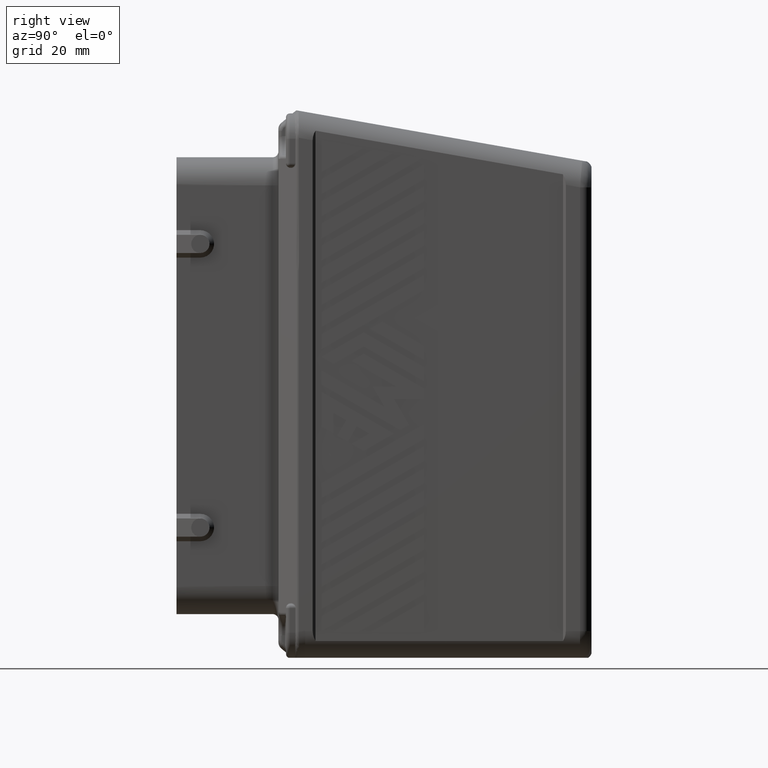
[diagram: clean part render]
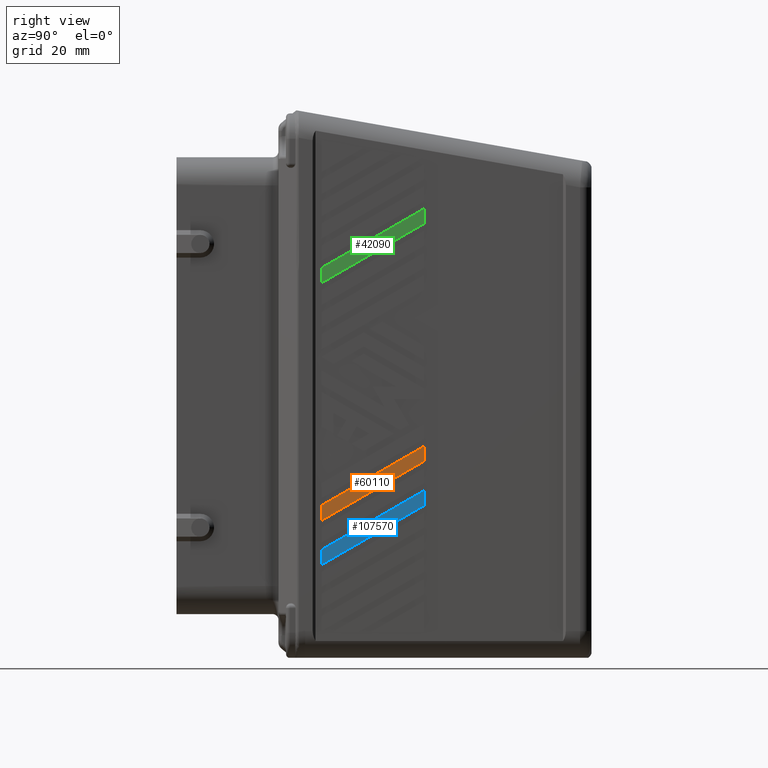
[diagram: same view with three faces highlighted in distinct colors, each labeled with its STEP entity id]
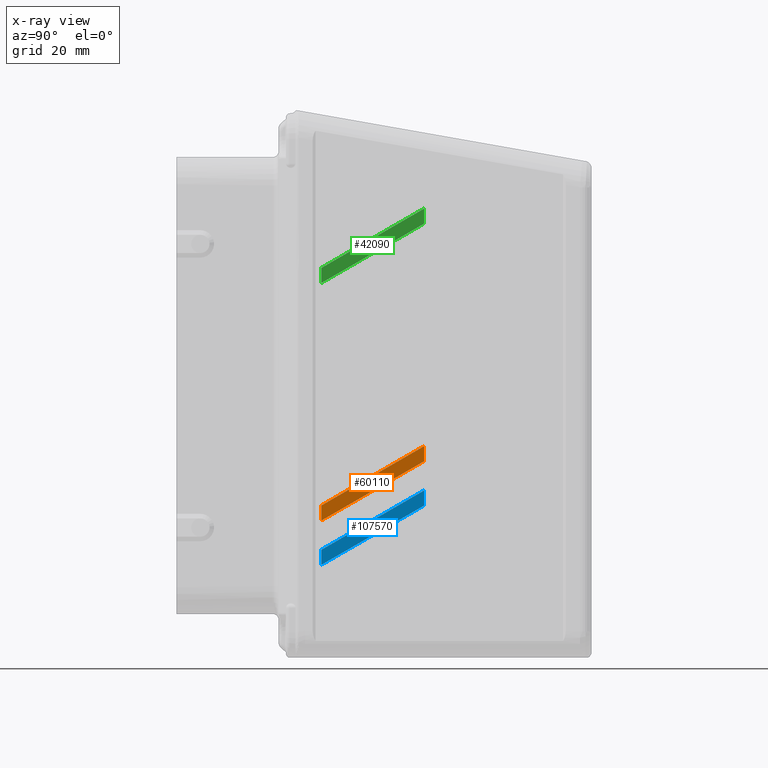
[diagram: x-ray of the same camera — body ghosted, the three highlighted faces saturated]
A machine part, right view with three faces highlighted in distinct colors.
The next image is the same camera in x-ray (body ghosted, the three faces saturated) — at least one of them is partly hidden behind the body in this view.
Their STEP definitions:

[orange] entity #60110 — the highlighted planar face has unit normal (1, -0, -0).
#41480=CARTESIAN_POINT('',(79.5281038823663,84.773232680981,
-19.8611943997613));
#41490=VERTEX_POINT('',#41480);
#41660=CARTESIAN_POINT('',(79.5281038823662,84.773232680981,
-23.8102702410184));
#41670=VERTEX_POINT('',#41660);
#41700=CARTESIAN_POINT('',(79.5281038823674,84.7732326809811,5.47));
#41710=DIRECTION('',(4.20886732018365E-14,4.49714925095434E-15,1.));
#41720=VECTOR('',#41710,1.);
#41730=LINE('',#41700,#41720);
#41740=EDGE_CURVE('',#41670,#41490,#41730,.T.);
#59810=CARTESIAN_POINT('',(79.5281038823673,68.1232326809805,
2.54895284159714));
#59820=DIRECTION('',(1.,-2.77555756156163E-17,-4.20886732018365E-14));
#59830=DIRECTION('',(-4.20886732018365E-14,1.17961196366423E-16,-1.));
#59840=AXIS2_PLACEMENT_3D('',#59810,#59820,#59830);
#59850=PLANE('',#59840);
#59860=CARTESIAN_POINT('',(79.5281038823644,57.7732326809806,
-66.2369034333514));
#59870=DIRECTION('',(4.20886732018365E-14,-2.14213244519121E-15,1.));
#59880=VECTOR('',#59870,1.);
#59890=LINE('',#59860,#59880);
#59900=CARTESIAN_POINT('',(79.5281038823655,57.7732326809806,
-39.3987275091386));
#59910=VERTEX_POINT('',#59900);
#59920=CARTESIAN_POINT('',(79.5281038823657,57.7732326809806,
-35.4496516678816));
#59930=VERTEX_POINT('',#59920);
#59940=EDGE_CURVE('',#59910,#59930,#59890,.T.);
#59950=ORIENTED_EDGE('',*,*,#59940,.F.);
#59960=CARTESIAN_POINT('',(79.5281038823643,1.4210854715202E-13,
-68.8050431082007));
#59970=DIRECTION('',(2.10683736344981E-14,0.866025403784437,
0.500000000000003));
#59980=VECTOR('',#59970,1.);
#59990=LINE('',#59960,#59980);
#60000=EDGE_CURVE('',#59930,#41490,#59990,.T.);
#60010=ORIENTED_EDGE('',*,*,#60000,.F.);
#60020=ORIENTED_EDGE('',*,*,#41740,.T.);
#60030=CARTESIAN_POINT('',(79.5281038823641,1.4210854715202E-13,
-72.7541189494578));
#60040=DIRECTION('',(2.10683736344981E-14,0.866025403784437,
0.500000000000003));
#60050=VECTOR('',#60040,1.);
#60060=LINE('',#60030,#60050);
#60070=EDGE_CURVE('',#59910,#41670,#60060,.T.);
#60080=ORIENTED_EDGE('',*,*,#60070,.T.);
#60090=EDGE_LOOP('',(#60080,#60020,#60010,#59950));
#60100=FACE_OUTER_BOUND('',#60090,.T.);
#60110=ADVANCED_FACE('',(#60100),#59850,.T.);

[blue] entity #107570 — the highlighted planar face has unit normal (1, -0, -0).
#83320=CARTESIAN_POINT('',(79.5281038823658,84.773232680981,
-31.5005758266242));
#83330=VERTEX_POINT('',#83320);
#83500=CARTESIAN_POINT('',(79.5281038823657,84.7732326809809,
-35.4496516678812));
#83510=VERTEX_POINT('',#83500);
#83540=CARTESIAN_POINT('',(79.5281038823674,84.7732326809812,5.47));
#83550=DIRECTION('',(4.20886732018365E-14,4.49714925095434E-15,1.));
#83560=VECTOR('',#83550,1.);
#83570=LINE('',#83540,#83560);
#83580=EDGE_CURVE('',#83510,#83330,#83570,.T.);
#107270=CARTESIAN_POINT('',(79.5281038823673,68.1232326809805,
2.54895284159714));
#107280=DIRECTION('',(1.,-2.77555756156163E-17,-4.20886732018365E-14));
#107290=DIRECTION('',(-4.20886732018365E-14,1.17961196366423E-16,-1.));
#107300=AXIS2_PLACEMENT_3D('',#107270,#107280,#107290);
#107310=PLANE('',#107300);
#107320=CARTESIAN_POINT('',(79.5281038823638,0.,-80.4444245350636));
#107330=DIRECTION('',(-2.10683736344981E-14,-0.866025403784437,
-0.500000000000003));
#107340=VECTOR('',#107330,1.);
#107350=LINE('',#107320,#107340);
#107360=CARTESIAN_POINT('',(79.5281038823652,57.7732326809806,
-47.0890330947444));
#107370=VERTEX_POINT('',#107360);
#107380=EDGE_CURVE('',#83330,#107370,#107350,.T.);
#107390=ORIENTED_EDGE('',*,*,#107380,.T.);
#107400=ORIENTED_EDGE('',*,*,#83580,.T.);
#107410=CARTESIAN_POINT('',(79.5281038823636,1.4210854715202E-13,
-84.3935003763206));
#107420=DIRECTION('',(2.10683736344981E-14,0.866025403784437,
0.500000000000003));
#107430=VECTOR('',#107420,1.);
#107440=LINE('',#107410,#107430);
#107450=CARTESIAN_POINT('',(79.528103882365,57.7732326809806,
-51.0381089360014));
#107460=VERTEX_POINT('',#107450);
#107470=EDGE_CURVE('',#107460,#83510,#107440,.T.);
#107480=ORIENTED_EDGE('',*,*,#107470,.T.);
#107490=CARTESIAN_POINT('',(79.5281038823644,57.7732326809806,
-66.2369034333514));
#107500=DIRECTION('',(-4.20886732018365E-14,2.14213244519121E-15,-1.));
#107510=VECTOR('',#107500,1.);
#107520=LINE('',#107490,#107510);
#107530=EDGE_CURVE('',#107370,#107460,#107520,.T.);
#107540=ORIENTED_EDGE('',*,*,#107530,.T.);
#107550=EDGE_LOOP('',(#107540,#107480,#107400,#107390));
#107560=FACE_OUTER_BOUND('',#107550,.T.);
#107570=ADVANCED_FACE('',(#107560),#107310,.T.);

[green] entity #42090 — the highlighted planar face has unit normal (1, -0, -0).
#5000=CARTESIAN_POINT('',(79.5281038823688,84.7732326809808,
38.5769424789017));
#5010=VERTEX_POINT('',#5000);
#5180=CARTESIAN_POINT('',(79.5281038823681,57.7732326809805,
22.9884852107815));
#5190=VERTEX_POINT('',#5180);
#5220=CARTESIAN_POINT('',(79.5281038823671,16.4210823381756,
-0.886189921206991));
#5230=DIRECTION('',(2.10683736344981E-14,0.866025403784437,
0.500000000000003));
#5240=VECTOR('',#5230,1.);
#5250=LINE('',#5220,#5240);
#5260=EDGE_CURVE('',#5190,#5010,#5250,.T.);
#41790=CARTESIAN_POINT('',(79.5281038823673,68.1232326809805,
2.54895284159714));
#41800=DIRECTION('',(1.,-2.77555756156163E-17,-4.20886732018365E-14));
#41810=DIRECTION('',(-4.20886732018365E-14,1.17961196366423E-16,-1.));
#41820=AXIS2_PLACEMENT_3D('',#41790,#41800,#41810);
#41830=PLANE('',#41820);
#41840=CARTESIAN_POINT('',(79.5281038823672,57.7732326809805,1.97));
#41850=DIRECTION('',(-4.20886732018365E-14,2.14213244519121E-15,-1.));
#41860=VECTOR('',#41850,1.);
#41870=LINE('',#41840,#41860);
#41880=CARTESIAN_POINT('',(79.5281038823683,57.7732326809805,
26.9375610520385));
#41890=VERTEX_POINT('',#41880);
#41900=EDGE_CURVE('',#41890,#5190,#41870,.T.);
#41910=ORIENTED_EDGE('',*,*,#41900,.T.);
#41920=CARTESIAN_POINT('',(79.5281038823673,16.4210823381756,
3.06288592005005));
#41930=DIRECTION('',(-2.10683736344981E-14,-0.866025403784437,
-0.500000000000003));
#41940=VECTOR('',#41930,1.);
#41950=LINE('',#41920,#41940);
#41960=CARTESIAN_POINT('',(79.528103882369,84.7732326809809,
42.5260183201587));
#41970=VERTEX_POINT('',#41960);
#41980=EDGE_CURVE('',#41970,#41890,#41950,.T.);
#41990=ORIENTED_EDGE('',*,*,#41980,.T.);
#42000=CARTESIAN_POINT('',(79.5281038823714,84.7732326809811,
100.232759537531));
#42010=DIRECTION('',(4.20886732018365E-14,4.49714925095434E-15,1.));
#42020=VECTOR('',#42010,1.);
#42030=LINE('',#42000,#42020);
#42040=EDGE_CURVE('',#5010,#41970,#42030,.T.);
#42050=ORIENTED_EDGE('',*,*,#42040,.T.);
#42060=ORIENTED_EDGE('',*,*,#5260,.T.);
#42070=EDGE_LOOP('',(#42060,#42050,#41990,#41910));
#42080=FACE_OUTER_BOUND('',#42070,.T.);
#42090=ADVANCED_FACE('',(#42080),#41830,.T.);